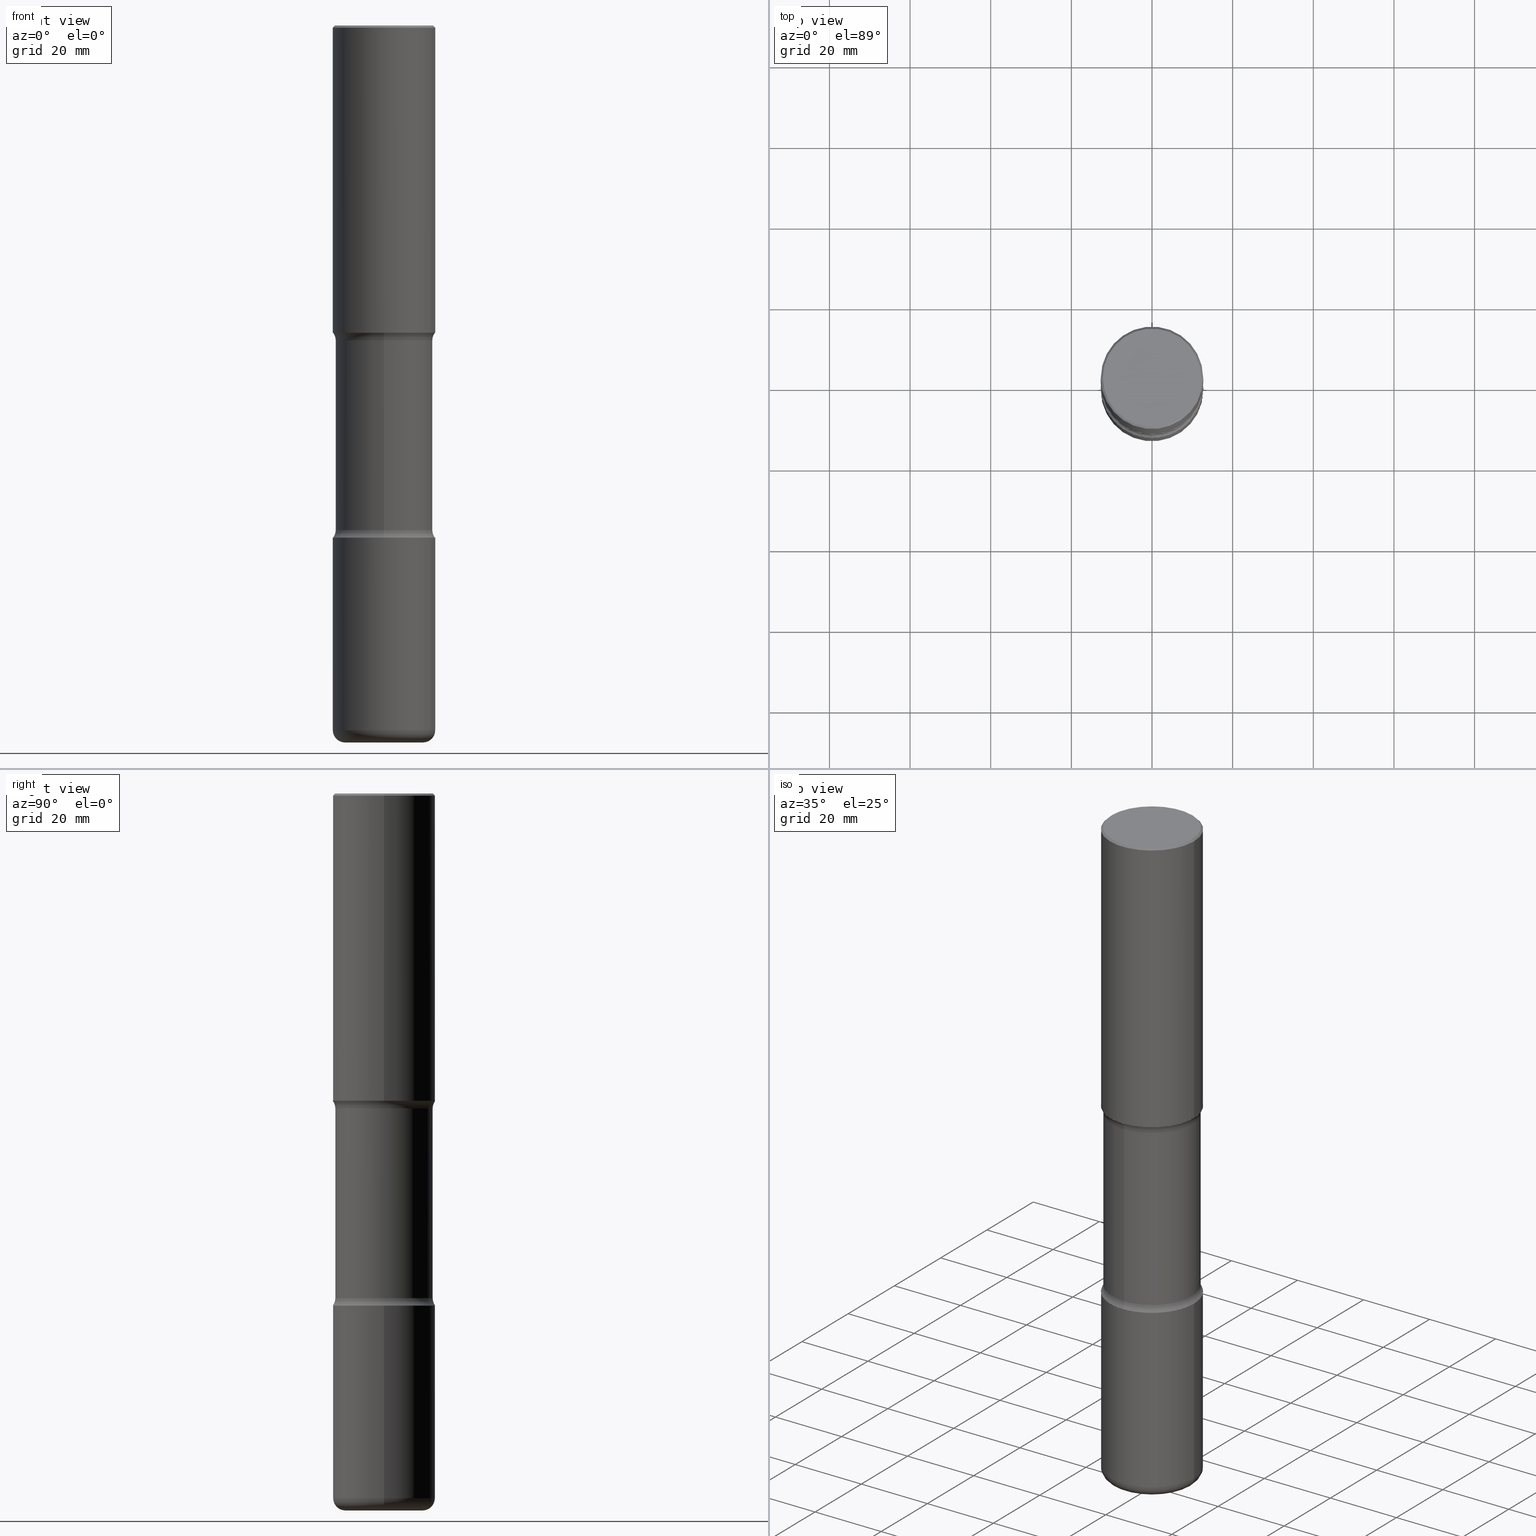
[diagram: canonical four-view strip — front | top / right | iso, engineering-drawing reading convention]
A machine part, canonical four-view strip (front | top / right | iso — engineering-drawing reading convention). The complete STEP part file that produces these views, byte-faithful:
ISO-10303-21;
HEADER;
FILE_DESCRIPTION (( 'STEP AP203' ),
    '1' );
FILE_NAME ('37977.STEP',
    '2024-03-02T02:02:01',
    ( '' ),
    ( '' ),
    'SwSTEP 2.0',
    'SolidWorks 2023',
    '' );
FILE_SCHEMA (( 'CONFIG_CONTROL_DESIGN' ));
ENDSEC;

DATA;
#1 = CARTESIAN_POINT ( 'NONE',  ( 1.204017111178237438E-28, -1.720093407839433761E-14, -4.924999999999998046 ) ) ;
#2 = VERTEX_POINT ( 'NONE', #493 ) ;
#3 = DIRECTION ( 'NONE',  ( 6.982962677686266711E-15, 1.000000000000000000, -4.370956789862819572E-15 ) ) ;
#4 = EDGE_CURVE ( 'NONE', #26, #50, #514, .T. ) ;
#5 = DIRECTION ( 'NONE',  ( 6.982962677686265133E-15, 1.000000000000000000, -3.419634877618474112E-15 ) ) ;
#6 = VERTEX_POINT ( 'NONE', #367 ) ;
#7 = AXIS2_PLACEMENT_3D ( 'NONE', #544, #153, #13 ) ;
#8 = ADVANCED_FACE ( 'NONE', ( #320 ), #121, .T. ) ;
#9 = DIRECTION ( 'NONE',  ( -1.000000000000000000, 6.982962677686266711E-15, 0.000000000000000000 ) ) ;
#10 = VERTEX_POINT ( 'NONE', #276 ) ;
#11 = DIRECTION ( 'NONE',  ( 6.982962677686265133E-15, 1.000000000000000000, -3.450755360418015555E-15 ) ) ;
#12 = ORIENTED_EDGE ( 'NONE', *, *, #429, .F. ) ;
#13 = DIRECTION ( 'NONE',  ( 6.982962677686265133E-15, 1.000000000000000000, -3.278217592397113101E-15 ) ) ;
#14 = FACE_OUTER_BOUND ( 'NONE', #356, .T. ) ;
#15 = APPROVAL_ROLE ( '' ) ;
#16 = AXIS2_PLACEMENT_3D ( 'NONE', #359, #132, #67 ) ;
#17 = DIRECTION ( 'NONE',  ( -2.445468806185136597E-29, 3.491481338843145583E-15, 1.000000000000000000 ) ) ;
#18 = EDGE_CURVE ( 'NONE', #309, #529, #423, .T. ) ;
#19 = FACE_OUTER_BOUND ( 'NONE', #213, .T. ) ;
#20 = APPLICATION_CONTEXT ( 'configuration controlled 3d designs of mechanical parts and assemblies' ) ;
#21 = DIRECTION ( 'NONE',  ( -2.445468806185136597E-29, 3.491481338843145583E-15, 1.000000000000000000 ) ) ;
#22 = AXIS2_PLACEMENT_3D ( 'NONE', #298, #475, #70 ) ;
#23 = EDGE_CURVE ( 'NONE', #6, #129, #75, .T. ) ;
#24 = DIRECTION ( 'NONE',  ( 1.000000000000000000, -6.982962677686266711E-15, 4.876431871984415397E-29 ) ) ;
#25 = FACE_OUTER_BOUND ( 'NONE', #552, .T. ) ;
#26 = VERTEX_POINT ( 'NONE', #177 ) ;
#27 = DIRECTION ( 'NONE',  ( -0.7071067811865471286, 2.468850131082252722E-15, -0.7071067811865479058 ) ) ;
#28 = AXIS2_PLACEMENT_3D ( 'NONE', #492, #90, #3 ) ;
#29 = CIRCLE ( 'NONE', #460, 0.5000000000000002220 ) ;
#30 = ORIENTED_EDGE ( 'NONE', *, *, #525, .T. ) ;
#31 = EDGE_CURVE ( 'NONE', #83, #136, #361, .T. ) ;
#32 = ORIENTED_EDGE ( 'NONE', *, *, #525, .F. ) ;
#33 = PERSON_AND_ORGANIZATION ( #466, #469 ) ;
#34 = ORIENTED_EDGE ( 'NONE', *, *, #249, .F. ) ;
#35 = CC_DESIGN_PERSON_AND_ORGANIZATION_ASSIGNMENT ( #216, #393, ( #123 ) ) ;
#36 = DIRECTION ( 'NONE',  ( 6.982962677686265922E-15, 1.000000000000000000, -2.300503573612011028E-15 ) ) ;
#37 =( NAMED_UNIT ( * ) PLANE_ANGLE_UNIT ( ) SI_UNIT ( $, .RADIAN. ) );
#38 = AXIS2_PLACEMENT_3D ( 'NONE', #435, #392, #72 ) ;
#39 = CIRCLE ( 'NONE', #16, 0.1250000000000002498 ) ;
#40 = ORIENTED_EDGE ( 'NONE', *, *, #64, .F. ) ;
#41 = CC_DESIGN_APPROVAL ( #278, ( #295 ) ) ;
#42 = CYLINDRICAL_SURFACE ( 'NONE', #22, 0.4750000000000000333 ) ;
#43 = EDGE_CURVE ( 'NONE', #2, #353, #155, .T. ) ;
#44 = DIRECTION ( 'NONE',  ( -2.445468806185136597E-29, 3.491481338843145583E-15, 1.000000000000000000 ) ) ;
#45 = ORIENTED_EDGE ( 'NONE', *, *, #66, .T. ) ;
#46 = LINE ( 'NONE', #494, #69 ) ;
#47 = APPROVAL_DATE_TIME ( #491, #454 ) ;
#48 = DATE_AND_TIME ( #452, #158 ) ;
#49 = CARTESIAN_POINT ( 'NONE',  ( 1.222734403092568074E-28, -1.745740669421572673E-14, -4.999999999999999112 ) ) ;
#50 = VERTEX_POINT ( 'NONE', #556 ) ;
#51 = AXIS2_PLACEMENT_3D ( 'NONE', #233, #342, #351 ) ;
#52 = CARTESIAN_POINT ( 'NONE',  ( 1.222734403092568074E-28, -1.745740669421572673E-14, -4.999999999999999112 ) ) ;
#53 = AXIS2_PLACEMENT_3D ( 'NONE', #226, #281, #406 ) ;
#54 = FACE_OUTER_BOUND ( 'NONE', #251, .T. ) ;
#55 = ORIENTED_EDGE ( 'NONE', *, *, #332, .T. ) ;
#56 = ADVANCED_FACE ( 'NONE', ( #117 ), #85, .F. ) ;
#57 = DIRECTION ( 'NONE',  ( 2.438088387897960049E-29, -3.491481338843145188E-15, -1.000000000000000000 ) ) ;
#58 = EDGE_LOOP ( 'NONE', ( #78, #257, #401, #496 ) ) ;
#59 = DIRECTION ( 'NONE',  ( -2.445468806185136877E-29, 3.491481338843145188E-15, 1.000000000000000000 ) ) ;
#60 = CARTESIAN_POINT ( 'NONE',  ( -3.344492773913500625E-15, -0.4750000000000171863, -4.924999999999997158 ) ) ;
#61 = FACE_OUTER_BOUND ( 'NONE', #58, .T. ) ;
#62 = AXIS2_PLACEMENT_3D ( 'NONE', #478, #172, #526 ) ;
#63 = CIRCLE ( 'NONE', #229, 0.1199999999999999539 ) ;
#64 = EDGE_CURVE ( 'NONE', #118, #411, #445, .T. ) ;
#65 = AXIS2_PLACEMENT_3D ( 'NONE', #348, #430, #547 ) ;
#66 = EDGE_CURVE ( 'NONE', #179, #124, #485, .T. ) ;
#67 = DIRECTION ( 'NONE',  ( -6.982962677686264344E-15, -1.000000000000000000, 0.000000000000000000 ) ) ;
#68 = PERSON_AND_ORGANIZATION_ROLE ( 'classification_officer' ) ;
#69 = VECTOR ( 'NONE', #102, 39.37007874015748143 ) ;
#70 = DIRECTION ( 'NONE',  ( 6.982962677686265922E-15, 1.000000000000000000, -2.300503573612011028E-15 ) ) ;
#71 = ORIENTED_EDGE ( 'NONE', *, *, #109, .T. ) ;
#72 = DIRECTION ( 'NONE',  ( 1.000000000000000000, -6.982962677686266711E-15, 0.000000000000000000 ) ) ;
#73 = ORIENTED_EDGE ( 'NONE', *, *, #308, .T. ) ;
#74 = MANIFOLD_SOLID_BREP ( 'Body-Move/Copy2[2]', #173 ) ;
#75 = CIRCLE ( 'NONE', #521, 0.4749999999999999778 ) ;
#76 = AXIS2_PLACEMENT_3D ( 'NONE', #465, #21, #163 ) ;
#77 = ORIENTED_EDGE ( 'NONE', *, *, #82, .F. ) ;
#78 = ORIENTED_EDGE ( 'NONE', *, *, #170, .F. ) ;
#79 = EDGE_CURVE ( 'NONE', #391, #176, #347, .T. ) ;
#80 = COORDINATED_UNIVERSAL_TIME_OFFSET ( 5, 0, .BEHIND. ) ;
#81 = ORIENTED_EDGE ( 'NONE', *, *, #355, .T. ) ;
#82 = EDGE_CURVE ( 'NONE', #179, #83, #299, .T. ) ;
#83 = VERTEX_POINT ( 'NONE', #210 ) ;
#84 = DIRECTION ( 'NONE',  ( -1.000000000000000000, 7.105427357600993970E-15, 0.000000000000000000 ) ) ;
#85 = PLANE ( 'NONE',  #62 ) ;
#86 = ORIENTED_EDGE ( 'NONE', *, *, #115, .F. ) ;
#87 = AXIS2_PLACEMENT_3D ( 'NONE', #110, #486, #24 ) ;
#88 = ORIENTED_EDGE ( 'NONE', *, *, #441, .T. ) ;
#89 = DIRECTION ( 'NONE',  ( 2.495638921910708014E-29, -3.419634877618474112E-15, -1.000000000000000000 ) ) ;
#90 = DIRECTION ( 'NONE',  ( 2.495638921910708014E-29, -3.419634877618474112E-15, -1.000000000000000000 ) ) ;
#91 = ORIENTED_EDGE ( 'NONE', *, *, #548, .T. ) ;
#92 = ORIENTED_EDGE ( 'NONE', *, *, #234, .T. ) ;
#93 = MANIFOLD_SOLID_BREP ( 'Body-Move/Copy2[1]', #195 ) ;
#94 = CARTESIAN_POINT ( 'NONE',  ( 0.4999999999999999445, -3.500078625662628685E-15, -0.02000000000000013572 ) ) ;
#95 = MANIFOLD_SOLID_BREP ( 'Body-Move/Copy2[4]', #228 ) ;
#96 = ORIENTED_EDGE ( 'NONE', *, *, #203, .T. ) ;
#97 = ADVANCED_FACE ( 'NONE', ( #389 ), #319, .T. ) ;
#98 = AXIS2_PLACEMENT_3D ( 'NONE', #488, #451, #498 ) ;
#99 = AXIS2_PLACEMENT_3D ( 'NONE', #318, #371, #269 ) ;
#100 = CARTESIAN_POINT ( 'NONE',  ( 3.491481338843257601E-15, 0.4999999999999828471, -5.000000000000000888 ) ) ;
#101 = LINE ( 'NONE', #279, #499 ) ;
#102 = DIRECTION ( 'NONE',  ( 2.495638921910708014E-29, -3.419634877618474112E-15, -1.000000000000000000 ) ) ;
#103 = DIRECTION ( 'NONE',  ( 6.982962677686265133E-15, 1.000000000000000000, -3.419634877618474112E-15 ) ) ;
#104 = AXIS2_PLACEMENT_3D ( 'NONE', #459, #227, #409 ) ;
#105 = PERSON_AND_ORGANIZATION_ROLE ( 'creator' ) ;
#106 = CIRCLE ( 'NONE', #7, 0.5000000000000004441 ) ;
#107 = APPROVAL_PERSON_ORGANIZATION ( #483, #454, #262 ) ;
#108 = DIRECTION ( 'NONE',  ( 1.000000000000000000, -6.982962677686263555E-15, 0.000000000000000000 ) ) ;
#109 = EDGE_CURVE ( 'NONE', #124, #136, #191, .T. ) ;
#110 = CARTESIAN_POINT ( 'NONE',  ( -4.175405657340879278E-46, 5.961372681521788801E-32, 1.707404996040164512E-17 ) ) ;
#111 = TOROIDAL_SURFACE ( 'NONE', #339, 0.5999999999999999778, 0.1250000000000001110 ) ;
#112 = CARTESIAN_POINT ( 'NONE',  ( -0.3800000000000004485, -2.132132921535246210E-14, -6.880000000000000782 ) ) ;
#113 = DIRECTION ( 'NONE',  ( 1.000000000000000000, -6.860497997771530774E-15, 4.841678745011831520E-29 ) ) ;
#114 = ORIENTED_EDGE ( 'NONE', *, *, #390, .T. ) ;
#115 = EDGE_CURVE ( 'NONE', #369, #2, #396, .T. ) ;
#116 = PERSON_AND_ORGANIZATION_ROLE ( 'design_owner' ) ;
#117 = FACE_OUTER_BOUND ( 'NONE', #553, .T. ) ;
#118 = VERTEX_POINT ( 'NONE', #100 ) ;
#119 = CC_DESIGN_DATE_AND_TIME_ASSIGNMENT ( #175, #352, ( #295 ) ) ;
#120 = DIRECTION ( 'NONE',  ( 6.860497997771531562E-15, 1.000000000000000000, 0.000000000000000000 ) ) ;
#121 = TOROIDAL_SURFACE ( 'NONE', #51, 0.3800000000000004485, 0.1199999999999999123 ) ;
#122 = CIRCLE ( 'NONE', #523, 0.4999999999999999445 ) ;
#123 = PRODUCT_DEFINITION_FORMATION_WITH_SPECIFIED_SOURCE ( 'ANY', '', #495, .NOT_KNOWN. ) ;
#124 = VERTEX_POINT ( 'NONE', #453 ) ;
#125 = DIRECTION ( 'NONE',  ( -2.445468806185136597E-29, 3.491481338843145583E-15, 1.000000000000000000 ) ) ;
#126 = EDGE_LOOP ( 'NONE', ( #302, #171, #182, #341 ) ) ;
#127 = DIRECTION ( 'NONE',  ( 2.495638921910708014E-29, -3.419634877618474112E-15, -1.000000000000000000 ) ) ;
#128 = DIRECTION ( 'NONE',  ( 1.000000000000000000, -6.982962677686264344E-15, 0.000000000000000000 ) ) ;
#129 = VERTEX_POINT ( 'NONE', #60 ) ;
#130 = DIRECTION ( 'NONE',  ( -2.445468806185136597E-29, 3.491481338843145583E-15, 1.000000000000000000 ) ) ;
#131 = DIRECTION ( 'NONE',  ( 2.495638921910708014E-29, -3.419634877618474112E-15, -1.000000000000000000 ) ) ;
#132 = DIRECTION ( 'NONE',  ( -1.000000000000000000, 6.982962677686265922E-15, -4.883557194083112340E-29 ) ) ;
#133 = AXIS2_PLACEMENT_3D ( 'NONE', #52, #538, #237 ) ;
#134 = CARTESIAN_POINT ( 'NONE',  ( 0.000000000000000000, 0.000000000000000000, 0.000000000000000000 ) ) ;
#135 = FACE_OUTER_BOUND ( 'NONE', #535, .T. ) ;
#136 = VERTEX_POINT ( 'NONE', #277 ) ;
#137 = APPROVAL_STATUS ( 'not_yet_approved' ) ;
#138 = ADVANCED_FACE ( 'NONE', ( #54 ), #385, .T. ) ;
#139 = DIRECTION ( 'NONE',  ( -2.445468806185136597E-29, 3.491481338843145583E-15, 1.000000000000000000 ) ) ;
#140 = ORIENTED_EDGE ( 'NONE', *, *, #340, .T. ) ;
#141 = LINE ( 'NONE', #327, #410 ) ;
#142 = APPLICATION_CONTEXT ( 'configuration controlled 3d designs of mechanical parts and assemblies' ) ;
#143 = DIRECTION ( 'NONE',  ( -6.982962677686264344E-15, -1.000000000000000000, 0.000000000000000000 ) ) ;
#144 = CC_DESIGN_DATE_AND_TIME_ASSIGNMENT ( #503, #287, ( #545 ) ) ;
#145 = AXIS2_PLACEMENT_3D ( 'NONE', #232, #270, #328 ) ;
#146 = CIRCLE ( 'NONE', #487, 0.3800000000000004485 ) ;
#147 = CARTESIAN_POINT ( 'NONE',  ( -4.116298798662799188E-15, -0.6000000000000174083, -4.924999999999996270 ) ) ;
#148 = DIRECTION ( 'NONE',  ( -2.445468806185136597E-29, 3.491481338843145583E-15, 1.000000000000000000 ) ) ;
#149 = LINE ( 'NONE', #368, #427 ) ;
#150 = ORIENTED_EDGE ( 'NONE', *, *, #193, .T. ) ;
#151 = DIRECTION ( 'NONE',  ( -2.445468806185136597E-29, 3.491481338843145583E-15, 1.000000000000000000 ) ) ;
#152 = ORIENTED_EDGE ( 'NONE', *, *, #500, .T. ) ;
#153 = DIRECTION ( 'NONE',  ( 2.495638921910708014E-29, -3.419634877618474112E-15, -1.000000000000000000 ) ) ;
#154 = DIRECTION ( 'NONE',  ( 2.495638921910708014E-29, -3.419634877618474112E-15, -1.000000000000000000 ) ) ;
#155 = CIRCLE ( 'NONE', #458, 0.1250000000000001110 ) ;
#156 = APPROVAL_STATUS ( 'not_yet_approved' ) ;
#157 = CIRCLE ( 'NONE', #202, 0.1250000000000001110 ) ;
#158 = LOCAL_TIME ( 21, 2, 1.000000000000000000, #244 ) ;
#159 = CARTESIAN_POINT ( 'NONE',  ( 1.711828164329595618E-28, -2.444036937190202184E-14, -7.000000000000000888 ) ) ;
#160 =( LENGTH_UNIT ( ) NAMED_UNIT ( * ) SI_UNIT ( $, .METRE. ) );
#161 = ADVANCED_FACE ( 'NONE', ( #135 ), #419, .F. ) ;
#162 = APPLICATION_PROTOCOL_DEFINITION ( 'international standard', 'config_control_design', 1994, #20 ) ;
#163 = DIRECTION ( 'NONE',  ( 1.000000000000000000, -6.982962677686267499E-15, 4.876176775795935793E-29 ) ) ;
#164 = AXIS2_PLACEMENT_3D ( 'NONE', #476, #44, #128 ) ;
#165 = ADVANCED_FACE ( 'NONE', ( #14 ), #246, .T. ) ;
#166 = ORIENTED_EDGE ( 'NONE', *, *, #479, .F. ) ;
#167 = DIRECTION ( 'NONE',  ( 6.982962677686265133E-15, 1.000000000000000000, -2.300503573612011422E-15 ) ) ;
#168 = EDGE_LOOP ( 'NONE', ( #268, #325, #489, #259 ) ) ;
#169 = DIRECTION ( 'NONE',  ( 2.495638921910708014E-29, -3.419634877618474112E-15, -1.000000000000000000 ) ) ;
#170 = EDGE_CURVE ( 'NONE', #411, #118, #530, .T. ) ;
#171 = ORIENTED_EDGE ( 'NONE', *, *, #66, .F. ) ;
#172 = DIRECTION ( 'NONE',  ( -2.438088387897960049E-29, 3.491481338843145188E-15, 1.000000000000000000 ) ) ;
#173 = CLOSED_SHELL ( 'NONE', ( #505, #165, #282, #187, #56, #292 ) ) ;
#174 = CIRCLE ( 'NONE', #374, 0.1250000000000002498 ) ;
#175 = DATE_AND_TIME ( #558, #286 ) ;
#176 = VERTEX_POINT ( 'NONE', #274 ) ;
#177 = CARTESIAN_POINT ( 'NONE',  ( 0.5000000000000002220, -2.094888803305886009E-14, -4.999999999999999112 ) ) ;
#178 = CALENDAR_DATE ( 2024, 1, 3 ) ;
#179 = VERTEX_POINT ( 'NONE', #415 ) ;
#180 = CARTESIAN_POINT ( 'NONE',  ( 3.316907271901051235E-15, 0.4749999999999892641, -3.075000000000001510 ) ) ;
#181 = DIRECTION ( 'NONE',  ( -1.000000000000000000, 6.982962677686265922E-15, -4.876176775795935793E-29 ) ) ;
#182 = ORIENTED_EDGE ( 'NONE', *, *, #82, .T. ) ;
#183 = CARTESIAN_POINT ( 'NONE',  ( -3.258736548941304889E-15, -0.4750000000000243472, -6.999999999999997335 ) ) ;
#184 = DIRECTION ( 'NONE',  ( 2.438088387897960049E-29, -3.491481338843145188E-15, -1.000000000000000000 ) ) ;
#185 = ORIENTED_EDGE ( 'NONE', *, *, #207, .F. ) ;
#186 = AXIS2_PLACEMENT_3D ( 'NONE', #360, #258, #36 ) ;
#187 = ADVANCED_FACE ( 'NONE', ( #194 ), #373, .F. ) ;
#188 = CC_DESIGN_APPROVAL ( #454, ( #545 ) ) ;
#189 = FACE_OUTER_BOUND ( 'NONE', #444, .T. ) ;
#190 = DIRECTION ( 'NONE',  ( 1.000000000000000000, -6.982962677686263555E-15, 0.000000000000000000 ) ) ;
#191 = LINE ( 'NONE', #94, #557 ) ;
#192 = PLANE ( 'NONE',  #133 ) ;
#193 = EDGE_CURVE ( 'NONE', #309, #50, #149, .T. ) ;
#194 = FACE_OUTER_BOUND ( 'NONE', #271, .T. ) ;
#195 = CLOSED_SHELL ( 'NONE', ( #382, #8, #97, #138, #380, #161 ) ) ;
#196 = TOROIDAL_SURFACE ( 'NONE', #99, 0.5999999999999999778, 0.1250000000000001110 ) ;
#197 = PLANE ( 'NONE',  #326 ) ;
#198 = DIRECTION ( 'NONE',  ( 1.000000000000000000, -6.982962677686267499E-15, 4.876176775795935793E-29 ) ) ;
#199 = DIRECTION ( 'NONE',  ( 2.495638921910708014E-29, -3.419634877618474112E-15, -1.000000000000000000 ) ) ;
#200 = CARTESIAN_POINT ( 'NONE',  ( 0.5000000000000004441, -2.751287295008398172E-14, -6.880000000000000782 ) ) ;
#201 = AXIS2_PLACEMENT_3D ( 'NONE', #49, #184, #316 ) ;
#202 = AXIS2_PLACEMENT_3D ( 'NONE', #267, #539, #143 ) ;
#203 = EDGE_CURVE ( 'NONE', #529, #309, #324, .T. ) ;
#204 = DIRECTION ( 'NONE',  ( 6.982962677686265133E-15, 1.000000000000000000, -2.300503573612011422E-15 ) ) ;
#205 = APPROVAL_DATE_TIME ( #48, #278 ) ;
#206 = DIRECTION ( 'NONE',  ( 1.000000000000000000, -6.982962677686266711E-15, 4.876176775795935232E-29 ) ) ;
#207 = EDGE_CURVE ( 'NONE', #369, #6, #46, .T. ) ;
#208 = ORIENTED_EDGE ( 'NONE', *, *, #79, .F. ) ;
#209 = AXIS2_PLACEMENT_3D ( 'NONE', #528, #169, #554 ) ;
#210 = CARTESIAN_POINT ( 'NONE',  ( -0.4999999999999999445, 3.421651712066269663E-15, -0.02000000000000013572 ) ) ;
#211 = ORIENTED_EDGE ( 'NONE', *, *, #304, .F. ) ;
#212 = UNCERTAINTY_MEASURE_WITH_UNIT (LENGTH_MEASURE( 1.000000000000000082E-05 ), #297, 'distance_accuracy_value', 'NONE');
#213 = EDGE_LOOP ( 'NONE', ( #34, #265, #404, #449 ) ) ;
#214 = CARTESIAN_POINT ( 'NONE',  ( -4.175405657340879278E-46, 5.961372681521788801E-32, 1.707404996040164512E-17 ) ) ;
#215 = DIRECTION ( 'NONE',  ( 2.495638921910708014E-29, -3.419634877618474112E-15, -1.000000000000000000 ) ) ;
#216 = PERSON_AND_ORGANIZATION ( #466, #469 ) ;
#217 = EDGE_LOOP ( 'NONE', ( #32, #416 ) ) ;
#218 = FACE_OUTER_BOUND ( 'NONE', #365, .T. ) ;
#219 = AXIS2_PLACEMENT_3D ( 'NONE', #467, #504, #103 ) ;
#220 = ORIENTED_EDGE ( 'NONE', *, *, #31, .F. ) ;
#221 = DIRECTION ( 'NONE',  ( 7.105427357601001859E-15, 1.000000000000000000, -3.491481338843145583E-15 ) ) ;
#222 = COORDINATED_UNIVERSAL_TIME_OFFSET ( 5, 0, .BEHIND. ) ;
#223 = CARTESIAN_POINT ( 'NONE',  ( -4.116298798662844153E-15, -0.6000000000000108580, -3.074999999999998401 ) ) ;
#224 = PERSON_AND_ORGANIZATION_ROLE ( 'creator' ) ;
#225 = ORIENTED_EDGE ( 'NONE', *, *, #115, .T. ) ;
#226 = CARTESIAN_POINT ( 'NONE',  ( 7.423239106247569958E-29, -1.087460955480016368E-14, -3.074999999999999734 ) ) ;
#227 = DIRECTION ( 'NONE',  ( 2.438088387897960049E-29, -3.491481338843145188E-15, -1.000000000000000000 ) ) ;
#228 = CLOSED_SHELL ( 'NONE', ( #370, #518, #546, #399, #471, #414, #255, #344 ) ) ;
#229 = AXIS2_PLACEMENT_3D ( 'NONE', #266, #261, #432 ) ;
#230 = CC_DESIGN_PERSON_AND_ORGANIZATION_ASSIGNMENT ( #280, #105, ( #545 ) ) ;
#231 = APPROVAL_PERSON_ORGANIZATION ( #238, #350, #264 ) ;
#232 = CARTESIAN_POINT ( 'NONE',  ( 1.682482538655374212E-28, -2.402139161124084521E-14, -6.880000000000000782 ) ) ;
#233 = CARTESIAN_POINT ( 'NONE',  ( 1.682482538655374212E-28, -2.402139161124084521E-14, -6.880000000000000782 ) ) ;
#234 = EDGE_CURVE ( 'NONE', #369, #305, #157, .T. ) ;
#235 = CARTESIAN_POINT ( 'NONE',  ( 1.682482538655374212E-28, -2.402139161124084521E-14, -6.880000000000000782 ) ) ;
#236 = ORIENTED_EDGE ( 'NONE', *, *, #207, .T. ) ;
#237 = DIRECTION ( 'NONE',  ( -6.982962677686265922E-15, -1.000000000000000000, 3.419634877618474112E-15 ) ) ;
#238 = PERSON_AND_ORGANIZATION ( #466, #469 ) ;
#239 = DIRECTION ( 'NONE',  ( 1.000000000000000000, -6.982962677686265133E-15, 4.883557194083111780E-29 ) ) ;
#240 = AXIS2_PLACEMENT_3D ( 'NONE', #214, #125, #307 ) ;
#241 = FACE_OUTER_BOUND ( 'NONE', #555, .T. ) ;
#242 = APPROVAL_PERSON_ORGANIZATION ( #405, #278, #15 ) ;
#243 = FACE_OUTER_BOUND ( 'NONE', #168, .T. ) ;
#244 = COORDINATED_UNIVERSAL_TIME_OFFSET ( 5, 0, .BEHIND. ) ;
#245 = LINE ( 'NONE', #293, #559 ) ;
#246 = CONICAL_SURFACE ( 'NONE', #98, 0.4999999999999999445, 0.7853981633974477239 ) ;
#247 = VECTOR ( 'NONE', #127, 39.37007874015748143 ) ;
#248 = LOCAL_TIME ( 21, 2, 1.000000000000000000, #463 ) ;
#249 = EDGE_CURVE ( 'NONE', #2, #369, #551, .T. ) ;
#250 = CARTESIAN_POINT ( 'NONE',  ( 1.204017111178237438E-28, -1.720093407839433761E-14, -4.924999999999998046 ) ) ;
#251 = EDGE_LOOP ( 'NONE', ( #413, #400, #81, #534 ) ) ;
#252 = CARTESIAN_POINT ( 'NONE',  ( -0.4999999999999999445, 3.421651712066269663E-15, -0.02000000000000013572 ) ) ;
#253 = ORIENTED_EDGE ( 'NONE', *, *, #64, .T. ) ;
#254 = ORIENTED_EDGE ( 'NONE', *, *, #23, .T. ) ;
#255 = ADVANCED_FACE ( 'NONE', ( #358 ), #294, .F. ) ;
#256 = DATE_AND_TIME ( #178, #364 ) ;
#257 = ORIENTED_EDGE ( 'NONE', *, *, #429, .T. ) ;
#258 = DIRECTION ( 'NONE',  ( 2.495638921910708014E-29, -3.419634877618474112E-15, -1.000000000000000000 ) ) ;
#259 = ORIENTED_EDGE ( 'NONE', *, *, #441, .F. ) ;
#260 = ORIENTED_EDGE ( 'NONE', *, *, #304, .T. ) ;
#261 = DIRECTION ( 'NONE',  ( -6.982962677686266711E-15, -1.000000000000000000, 3.491481338843145583E-15 ) ) ;
#262 = APPROVAL_ROLE ( '' ) ;
#263 = AXIS2_PLACEMENT_3D ( 'NONE', #134, #431, #206 ) ;
#264 = APPROVAL_ROLE ( '' ) ;
#265 = ORIENTED_EDGE ( 'NONE', *, *, #43, .T. ) ;
#266 = CARTESIAN_POINT ( 'NONE',  ( 0.3800000000000004485, -2.667491742876162845E-14, -6.880000000000000782 ) ) ;
#267 = CARTESIAN_POINT ( 'NONE',  ( 4.189777606611833390E-15, 0.5999999999999890976, -3.075000000000002398 ) ) ;
#268 = ORIENTED_EDGE ( 'NONE', *, *, #79, .T. ) ;
#269 = DIRECTION ( 'NONE',  ( 6.982962677686265133E-15, 1.000000000000000000, -3.419634877618474112E-15 ) ) ;
#270 = DIRECTION ( 'NONE',  ( -2.445468806185136597E-29, 3.491481338843145583E-15, 1.000000000000000000 ) ) ;
#271 = EDGE_LOOP ( 'NONE', ( #45, #73 ) ) ;
#272 = ORIENTED_EDGE ( 'NONE', *, *, #193, .F. ) ;
#273 = DIRECTION ( 'NONE',  ( -2.445468806185136597E-29, 3.491481338843145583E-15, 1.000000000000000000 ) ) ;
#274 = CARTESIAN_POINT ( 'NONE',  ( -0.5000000000000002220, -1.719423142852643572E-15, -2.999999999999999112 ) ) ;
#275 = ORIENTED_EDGE ( 'NONE', *, *, #43, .F. ) ;
#276 = CARTESIAN_POINT ( 'NONE',  ( 0.3800000000000004485, -2.709389518942280508E-14, -7.000000000000000888 ) ) ;
#277 = CARTESIAN_POINT ( 'NONE',  ( 0.4999999999999999445, -3.500078625662628685E-15, -0.02000000000000013572 ) ) ;
#278 = APPROVAL ( #137, 'UNSPECIFIED' ) ;
#279 = CARTESIAN_POINT ( 'NONE',  ( 0.5000000000000001110, -3.491481338843134539E-15, 2.438088387897968457E-29 ) ) ;
#280 = PERSON_AND_ORGANIZATION ( #466, #469 ) ;
#281 = DIRECTION ( 'NONE',  ( 2.495638921910708014E-29, -3.419634877618474112E-15, -1.000000000000000000 ) ) ;
#282 = ADVANCED_FACE ( 'NONE', ( #362 ), #381, .T. ) ;
#283 = DIRECTION ( 'NONE',  ( -2.445468806185136597E-29, 3.491481338843145583E-15, 1.000000000000000000 ) ) ;
#284 = VECTOR ( 'NONE', #27, 39.37007874015748143 ) ;
#285 = CIRCLE ( 'NONE', #87, 0.4799999999999998157 ) ;
#286 = LOCAL_TIME ( 21, 2, 1.000000000000000000, #472 ) ;
#287 = DATE_TIME_ROLE ( 'creation_date' ) ;
#288 = CC_DESIGN_PERSON_AND_ORGANIZATION_ASSIGNMENT ( #388, #116, ( #495 ) ) ;
#289 = DIRECTION ( 'NONE',  ( 1.000000000000000000, -6.982962677686263555E-15, 0.000000000000000000 ) ) ;
#290 = CARTESIAN_POINT ( 'NONE',  ( 7.424434616114947917E-29, -1.087289751662588659E-14, -3.075000000000000178 ) ) ;
#291 = DIRECTION ( 'NONE',  ( 6.982962677686265133E-15, 1.000000000000000000, -3.278217592397113101E-15 ) ) ;
#292 = ADVANCED_FACE ( 'NONE', ( #189 ), #366, .T. ) ;
#293 = CARTESIAN_POINT ( 'NONE',  ( -0.5000000000000001110, 3.552713678800501718E-15, -2.459467545127453732E-29 ) ) ;
#294 = TOROIDAL_SURFACE ( 'NONE', #349, 0.6000000000000001998, 0.1250000000000002498 ) ;
#295 = SECURITY_CLASSIFICATION ( '', '', #337 ) ;
#296 = FACE_OUTER_BOUND ( 'NONE', #442, .T. ) ;
#297 =( CONVERSION_BASED_UNIT ( 'INCH', #520 ) LENGTH_UNIT ( ) NAMED_UNIT ( #322 ) );
#298 = CARTESIAN_POINT ( 'NONE',  ( 1.721862187474709565E-28, -2.429667644945267101E-14, -6.999999999999998224 ) ) ;
#299 = LINE ( 'NONE', #252, #284 ) ;
#300 = ORIENTED_EDGE ( 'NONE', *, *, #4, .T. ) ;
#301 = APPLICATION_PROTOCOL_DEFINITION ( 'international standard', 'config_control_design', 1994, #142 ) ;
#302 = ORIENTED_EDGE ( 'NONE', *, *, #109, .F. ) ;
#303 = AXIS2_PLACEMENT_3D ( 'NONE', #536, #533, #9 ) ;
#304 = EDGE_CURVE ( 'NONE', #50, #26, #29, .T. ) ;
#305 = VERTEX_POINT ( 'NONE', #354 ) ;
#306 = ORIENTED_EDGE ( 'NONE', *, *, #203, .F. ) ;
#307 = DIRECTION ( 'NONE',  ( 1.000000000000000000, -6.982962677686266711E-15, 4.876431871984415397E-29 ) ) ;
#308 = EDGE_CURVE ( 'NONE', #124, #179, #285, .T. ) ;
#309 = VERTEX_POINT ( 'NONE', #490 ) ;
#310 = CARTESIAN_POINT ( 'NONE',  ( -3.430248998885697150E-15, -0.5000000000000112133, -2.999999999999997335 ) ) ;
#311 = CARTESIAN_POINT ( 'NONE',  ( -1.099429689693299197E-28, -6.469918191011217794E-14, -7.000000000000000000 ) ) ;
#312 = CIRCLE ( 'NONE', #540, 0.3800000000000004485 ) ;
#313 = ORIENTED_EDGE ( 'NONE', *, *, #510, .F. ) ;
#314 = CC_DESIGN_PERSON_AND_ORGANIZATION_ASSIGNMENT ( #33, #224, ( #123 ) ) ;
#315 = APPROVAL_STATUS ( 'not_yet_approved' ) ;
#316 = DIRECTION ( 'NONE',  ( -1.000000000000000000, 6.982962677686265922E-15, -4.876176775795935793E-29 ) ) ;
#317 = ORIENTED_EDGE ( 'NONE', *, *, #345, .F. ) ;
#318 = CARTESIAN_POINT ( 'NONE',  ( 7.424434616114947917E-29, -1.087289751662588659E-14, -3.075000000000000178 ) ) ;
#319 = PLANE ( 'NONE',  #550 ) ;
#320 = FACE_OUTER_BOUND ( 'NONE', #386, .T. ) ;
#321 = PRODUCT_DEFINITION_SHAPE ( 'NONE', 'NONE',  #545 ) ;
#322 = DIMENSIONAL_EXPONENTS ( 1.000000000000000000, 0.000000000000000000, 0.000000000000000000, 0.000000000000000000, 0.000000000000000000, 0.000000000000000000, 0.000000000000000000 ) ;
#323 = CARTESIAN_POINT ( 'NONE',  ( 1.204393387046179415E-28, -1.719554559380248700E-14, -4.924999999999998046 ) ) ;
#324 = CIRCLE ( 'NONE', #145, 0.5000000000000004441 ) ;
#325 = ORIENTED_EDGE ( 'NONE', *, *, #479, .T. ) ;
#326 = AXIS2_PLACEMENT_3D ( 'NONE', #375, #509, #513 ) ;
#327 = CARTESIAN_POINT ( 'NONE',  ( 0.5000000000000004441, -3.491481338843136511E-15, 2.438088387897969858E-29 ) ) ;
#328 = DIRECTION ( 'NONE',  ( 1.000000000000000000, -6.982962677686264344E-15, 0.000000000000000000 ) ) ;
#329 = CALENDAR_DATE ( 2024, 1, 3 ) ;
#330 = CARTESIAN_POINT ( 'NONE',  ( 1.711828164329595618E-28, -2.444036937190202184E-14, -7.000000000000000888 ) ) ;
#331 = CARTESIAN_POINT ( 'NONE',  ( 0.5000000000000002220, -1.396592535537256813E-14, -2.999999999999999112 ) ) ;
#332 = EDGE_CURVE ( 'NONE', #2, #129, #446, .T. ) ;
#333 = AXIS2_PLACEMENT_3D ( 'NONE', #420, #456, #190 ) ;
#334 = CIRCLE ( 'NONE', #437, 0.5000000000000004441 ) ;
#335 = DIRECTION ( 'NONE',  ( 6.982962677686265133E-15, 1.000000000000000000, -3.419634877618474112E-15 ) ) ;
#336 = CC_DESIGN_SECURITY_CLASSIFICATION ( #295, ( #123 ) ) ;
#337 = SECURITY_CLASSIFICATION_LEVEL ( 'unclassified' ) ;
#338 = EDGE_CURVE ( 'NONE', #136, #83, #122, .T. ) ;
#339 = AXIS2_PLACEMENT_3D ( 'NONE', #290, #154, #335 ) ;
#340 = EDGE_CURVE ( 'NONE', #537, #309, #428, .T. ) ;
#341 = ORIENTED_EDGE ( 'NONE', *, *, #31, .T. ) ;
#342 = DIRECTION ( 'NONE',  ( -2.445468806185136597E-29, 3.491481338843145583E-15, 1.000000000000000000 ) ) ;
#343 = ORIENTED_EDGE ( 'NONE', *, *, #308, .F. ) ;
#344 = ADVANCED_FACE ( 'NONE', ( #296 ), #42, .T. ) ;
#345 = EDGE_CURVE ( 'NONE', #129, #6, #363, .T. ) ;
#346 = ORIENTED_EDGE ( 'NONE', *, *, #18, .T. ) ;
#347 = CIRCLE ( 'NONE', #473, 0.5000000000000002220 ) ;
#348 = CARTESIAN_POINT ( 'NONE',  ( 0.000000000000000000, 0.000000000000000000, 0.000000000000000000 ) ) ;
#349 = AXIS2_PLACEMENT_3D ( 'NONE', #323, #131, #5 ) ;
#350 = APPROVAL ( #156, 'UNSPECIFIED' ) ;
#351 = DIRECTION ( 'NONE',  ( 1.000000000000000000, -6.982962677686265133E-15, 4.883557194083111780E-29 ) ) ;
#352 = DATE_TIME_ROLE ( 'classification_date' ) ;
#353 = VERTEX_POINT ( 'NONE', #310 ) ;
#354 = CARTESIAN_POINT ( 'NONE',  ( 3.491481338843209480E-15, 0.4999999999999900080, -3.000000000000000888 ) ) ;
#355 = EDGE_CURVE ( 'NONE', #10, #529, #63, .T. ) ;
#356 = EDGE_LOOP ( 'NONE', ( #343, #71, #522, #77 ) ) ;
#357 = EDGE_LOOP ( 'NONE', ( #12, #40, #152, #254 ) ) ;
#358 = FACE_OUTER_BOUND ( 'NONE', #357, .T. ) ;
#359 = CARTESIAN_POINT ( 'NONE',  ( 4.189777606611881511E-15, 0.5999999999999829914, -4.925000000000000711 ) ) ;
#360 = CARTESIAN_POINT ( 'NONE',  ( 1.721862187474709565E-28, -2.429667644945267101E-14, -6.999999999999998224 ) ) ;
#361 = CIRCLE ( 'NONE', #38, 0.4999999999999999445 ) ;
#362 = FACE_OUTER_BOUND ( 'NONE', #126, .T. ) ;
#363 = CIRCLE ( 'NONE', #424, 0.4749999999999999778 ) ;
#364 = LOCAL_TIME ( 21, 2, 1.000000000000000000, #80 ) ;
#365 = EDGE_LOOP ( 'NONE', ( #96, #150, #438, #455 ) ) ;
#366 = CYLINDRICAL_SURFACE ( 'NONE', #474, 0.5000000000000001110 ) ;
#367 = CARTESIAN_POINT ( 'NONE',  ( 3.316907271901096594E-15, 0.4749999999999827693, -4.924999999999999822 ) ) ;
#368 = CARTESIAN_POINT ( 'NONE',  ( -0.5000000000000004441, 3.552713678800504085E-15, -2.459467545127455133E-29 ) ) ;
#369 = VERTEX_POINT ( 'NONE', #180 ) ;
#370 = ADVANCED_FACE ( 'NONE', ( #25 ), #450, .T. ) ;
#371 = DIRECTION ( 'NONE',  ( 2.495638921910708014E-29, -3.419634877618474112E-15, -1.000000000000000000 ) ) ;
#372 = SHAPE_DEFINITION_REPRESENTATION ( #321, #439 ) ;
#373 = PLANE ( 'NONE',  #104 ) ;
#374 = AXIS2_PLACEMENT_3D ( 'NONE', #147, #425, #506 ) ;
#375 = CARTESIAN_POINT ( 'NONE',  ( 7.336406418555407548E-29, -1.047444401652943320E-14, -2.999999999999999112 ) ) ;
#376 = DIRECTION ( 'NONE',  ( 1.000000000000000000, -6.982962677686263555E-15, 0.000000000000000000 ) ) ;
#377 = CARTESIAN_POINT ( 'NONE',  ( 0.000000000000000000, 0.000000000000000000, 0.000000000000000000 ) ) ;
#378 = CARTESIAN_POINT ( 'NONE',  ( -0.3800000000000004485, -2.110449245422699151E-14, -7.000000000000000888 ) ) ;
#379 = CC_DESIGN_PERSON_AND_ORGANIZATION_ASSIGNMENT ( #512, #68, ( #295 ) ) ;
#380 = ADVANCED_FACE ( 'NONE', ( #531 ), #443, .T. ) ;
#381 = CONICAL_SURFACE ( 'NONE', #303, 0.4999999999999999445, 0.7853981633974477239 ) ;
#382 = ADVANCED_FACE ( 'NONE', ( #218 ), #384, .T. ) ;
#383 = CARTESIAN_POINT ( 'NONE',  ( 7.236066187104263592E-29, -1.061813693897877772E-14, -2.999999999999999112 ) ) ;
#384 = CYLINDRICAL_SURFACE ( 'NONE', #387, 0.5000000000000004441 ) ;
#385 = TOROIDAL_SURFACE ( 'NONE', #407, 0.3800000000000004485, 0.1199999999999999123 ) ;
#386 = EDGE_LOOP ( 'NONE', ( #30, #140, #306, #527 ) ) ;
#387 = AXIS2_PLACEMENT_3D ( 'NONE', #377, #273, #418 ) ;
#388 = PERSON_AND_ORGANIZATION ( #466, #469 ) ;
#389 = FACE_OUTER_BOUND ( 'NONE', #217, .T. ) ;
#390 = EDGE_CURVE ( 'NONE', #305, #353, #106, .T. ) ;
#391 = VERTEX_POINT ( 'NONE', #331 ) ;
#392 = DIRECTION ( 'NONE',  ( -2.445468806185136597E-29, 3.491481338843145583E-15, 1.000000000000000000 ) ) ;
#393 = PERSON_AND_ORGANIZATION_ROLE ( 'design_supplier' ) ;
#394 = DIRECTION ( 'NONE',  ( -2.445468806185136877E-29, 3.491481338843145188E-15, 1.000000000000000000 ) ) ;
#395 = ORIENTED_EDGE ( 'NONE', *, *, #390, .F. ) ;
#396 = CIRCLE ( 'NONE', #497, 0.4750000000000001443 ) ;
#397 = CARTESIAN_POINT ( 'NONE',  ( 4.890937612370306439E-31, -6.982962677686338448E-17, -0.02000000000000013572 ) ) ;
#398 = AXIS2_PLACEMENT_3D ( 'NONE', #112, #221, #84 ) ;
#399 = ADVANCED_FACE ( 'NONE', ( #462 ), #196, .F. ) ;
#400 = ORIENTED_EDGE ( 'NONE', *, *, #515, .T. ) ;
#401 = ORIENTED_EDGE ( 'NONE', *, *, #345, .T. ) ;
#402 = CALENDAR_DATE ( 2024, 1, 3 ) ;
#403 = DIRECTION ( 'NONE',  ( -2.445468806185136597E-29, 3.491481338843145583E-15, 1.000000000000000000 ) ) ;
#404 = ORIENTED_EDGE ( 'NONE', *, *, #510, .T. ) ;
#405 = PERSON_AND_ORGANIZATION ( #466, #469 ) ;
#406 = DIRECTION ( 'NONE',  ( 6.982962677686265133E-15, 1.000000000000000000, -3.450755360418015555E-15 ) ) ;
#407 = AXIS2_PLACEMENT_3D ( 'NONE', #235, #139, #239 ) ;
#408 =( NAMED_UNIT ( * ) SI_UNIT ( $, .STERADIAN. ) SOLID_ANGLE_UNIT ( ) );
#409 = DIRECTION ( 'NONE',  ( -1.000000000000000000, 6.982962677686265922E-15, -4.876176775795935793E-29 ) ) ;
#410 = VECTOR ( 'NONE', #501, 39.37007874015748143 ) ;
#411 = VERTEX_POINT ( 'NONE', #457 ) ;
#412 = LOCAL_TIME ( 21, 2, 1.000000000000000000, #222 ) ;
#413 = ORIENTED_EDGE ( 'NONE', *, *, #340, .F. ) ;
#414 = ADVANCED_FACE ( 'NONE', ( #241 ), #192, .F. ) ;
#415 = CARTESIAN_POINT ( 'NONE',  ( -0.4799999999999998157, 3.386736898677838408E-15, 1.707404996037808406E-17 ) ) ;
#416 = ORIENTED_EDGE ( 'NONE', *, *, #515, .F. ) ;
#417 = ORIENTED_EDGE ( 'NONE', *, *, #249, .T. ) ;
#418 = DIRECTION ( 'NONE',  ( 1.000000000000000000, -6.982962677686266711E-15, 4.876176775795935232E-29 ) ) ;
#419 = PLANE ( 'NONE',  #201 ) ;
#420 = CARTESIAN_POINT ( 'NONE',  ( 1.222734403092568074E-28, -1.745740669421572673E-14, -4.999999999999999112 ) ) ;
#421 = FACE_OUTER_BOUND ( 'NONE', #484, .T. ) ;
#422 = CARTESIAN_POINT ( 'NONE',  ( 1.222734403092568074E-28, -1.745740669421572673E-14, -4.999999999999999112 ) ) ;
#423 = CIRCLE ( 'NONE', #164, 0.5000000000000004441 ) ;
#424 = AXIS2_PLACEMENT_3D ( 'NONE', #250, #89, #204 ) ;
#425 = DIRECTION ( 'NONE',  ( 1.000000000000000000, -6.860497997771530774E-15, 4.841678745011831520E-29 ) ) ;
#426 = CYLINDRICAL_SURFACE ( 'NONE', #76, 0.5000000000000001110 ) ;
#427 = VECTOR ( 'NONE', #461, 39.37007874015748143 ) ;
#428 = CIRCLE ( 'NONE', #398, 0.1199999999999999539 ) ;
#429 = EDGE_CURVE ( 'NONE', #411, #129, #174, .T. ) ;
#430 = DIRECTION ( 'NONE',  ( 0.000000000000000000, 0.000000000000000000, 1.000000000000000000 ) ) ;
#431 = DIRECTION ( 'NONE',  ( -2.445468806185136597E-29, 3.491481338843145583E-15, 1.000000000000000000 ) ) ;
#432 = DIRECTION ( 'NONE',  ( 1.000000000000000000, -6.982962677686270655E-15, 0.000000000000000000 ) ) ;
#433 = EDGE_LOOP ( 'NONE', ( #272, #346, #436, #211 ) ) ;
#434 = EDGE_CURVE ( 'NONE', #529, #26, #141, .T. ) ;
#435 = CARTESIAN_POINT ( 'NONE',  ( 4.890937612370306439E-31, -6.982962677686338448E-17, -0.02000000000000013572 ) ) ;
#436 = ORIENTED_EDGE ( 'NONE', *, *, #434, .T. ) ;
#437 = AXIS2_PLACEMENT_3D ( 'NONE', #383, #199, #291 ) ;
#438 = ORIENTED_EDGE ( 'NONE', *, *, #4, .F. ) ;
#439 = ADVANCED_BREP_SHAPE_REPRESENTATION ( '37977', ( #93, #74, #95, #65 ), #480 ) ;
#440 = APPROVAL_DATE_TIME ( #256, #350 ) ;
#441 = EDGE_CURVE ( 'NONE', #391, #136, #101, .T. ) ;
#442 = EDGE_LOOP ( 'NONE', ( #519, #417, #236, #317 ) ) ;
#443 = CYLINDRICAL_SURFACE ( 'NONE', #263, 0.5000000000000004441 ) ;
#444 = EDGE_LOOP ( 'NONE', ( #166, #91, #88, #220 ) ) ;
#445 = CIRCLE ( 'NONE', #209, 0.5000000000000002220 ) ;
#446 = LINE ( 'NONE', #183, #247 ) ;
#447 = PRODUCT_RELATED_PRODUCT_CATEGORY ( 'detail', '', ( #495 ) ) ;
#448 = CARTESIAN_POINT ( 'NONE',  ( 7.336406418555407548E-29, -1.047444401652943320E-14, -2.999999999999999112 ) ) ;
#449 = ORIENTED_EDGE ( 'NONE', *, *, #234, .F. ) ;
#450 = CYLINDRICAL_SURFACE ( 'NONE', #186, 0.4750000000000000333 ) ;
#451 = DIRECTION ( 'NONE',  ( 2.445468806185136597E-29, -3.491481338843145583E-15, -1.000000000000000000 ) ) ;
#452 = CALENDAR_DATE ( 2024, 1, 3 ) ;
#453 = CARTESIAN_POINT ( 'NONE',  ( 0.4799999999999998157, -3.396558832296481310E-15, 1.707404996042524007E-17 ) ) ;
#454 = APPROVAL ( #315, 'UNSPECIFIED' ) ;
#455 = ORIENTED_EDGE ( 'NONE', *, *, #434, .F. ) ;
#456 = DIRECTION ( 'NONE',  ( -2.445468806185136597E-29, 3.491481338843145583E-15, 1.000000000000000000 ) ) ;
#457 = CARTESIAN_POINT ( 'NONE',  ( -3.430248998885645480E-15, -0.5000000000000177636, -4.999999999999997335 ) ) ;
#458 = AXIS2_PLACEMENT_3D ( 'NONE', #223, #113, #120 ) ;
#459 = CARTESIAN_POINT ( 'NONE',  ( 3.351822085289406364E-15, 0.4799999999999998157, -1.667374017664508443E-15 ) ) ;
#460 = AXIS2_PLACEMENT_3D ( 'NONE', #422, #17, #376 ) ;
#461 = DIRECTION ( 'NONE',  ( -2.445468806185136877E-29, 3.491481338843145188E-15, 1.000000000000000000 ) ) ;
#462 = FACE_OUTER_BOUND ( 'NONE', #481, .T. ) ;
#463 = COORDINATED_UNIVERSAL_TIME_OFFSET ( 5, 0, .BEHIND. ) ;
#464 = CARTESIAN_POINT ( 'NONE',  ( 7.423239106247569958E-29, -1.087460955480016368E-14, -3.074999999999999734 ) ) ;
#465 = CARTESIAN_POINT ( 'NONE',  ( 0.000000000000000000, 0.000000000000000000, 0.000000000000000000 ) ) ;
#466 = PERSON ( 'UNSPECIFIED', 'UNSPECIFIED', 'UNSPECIFIED', ('UNSPECIFIED'), ('UNSPECIFIED'), ('UNSPECIFIED') ) ;
#467 = CARTESIAN_POINT ( 'NONE',  ( 1.204393387046179415E-28, -1.719554559380248700E-14, -4.924999999999998046 ) ) ;
#468 = CIRCLE ( 'NONE', #508, 0.5000000000000002220 ) ;
#469 = ORGANIZATION ( 'UNSPECIFIED', 'UNSPECIFIED', '' ) ;
#470 = DIRECTION ( 'NONE',  ( 1.000000000000000000, -6.982962677686267499E-15, 0.000000000000000000 ) ) ;
#471 = ADVANCED_FACE ( 'NONE', ( #421 ), #197, .F. ) ;
#472 = COORDINATED_UNIVERSAL_TIME_OFFSET ( 5, 0, .BEHIND. ) ;
#473 = AXIS2_PLACEMENT_3D ( 'NONE', #448, #403, #517 ) ;
#474 = AXIS2_PLACEMENT_3D ( 'NONE', #543, #151, #198 ) ;
#475 = DIRECTION ( 'NONE',  ( 2.495638921910708014E-29, -3.419634877618474112E-15, -1.000000000000000000 ) ) ;
#476 = CARTESIAN_POINT ( 'NONE',  ( 1.682482538655374212E-28, -2.402139161124084521E-14, -6.880000000000000782 ) ) ;
#477 = ORIENTED_EDGE ( 'NONE', *, *, #23, .F. ) ;
#478 = CARTESIAN_POINT ( 'NONE',  ( 7.336406418555407548E-29, -1.047444401652943320E-14, -2.999999999999999112 ) ) ;
#479 = EDGE_CURVE ( 'NONE', #176, #83, #245, .T. ) ;
#480 =( GEOMETRIC_REPRESENTATION_CONTEXT ( 3 ) GLOBAL_UNCERTAINTY_ASSIGNED_CONTEXT ( ( #212 ) ) GLOBAL_UNIT_ASSIGNED_CONTEXT ( ( #297, #37, #408 ) ) REPRESENTATION_CONTEXT ( 'NONE', 'WORKASPACE' ) );
#481 = EDGE_LOOP ( 'NONE', ( #275, #86, #92, #114 ) ) ;
#482 = ORIENTED_EDGE ( 'NONE', *, *, #170, .T. ) ;
#483 = PERSON_AND_ORGANIZATION ( #466, #469 ) ;
#484 = EDGE_LOOP ( 'NONE', ( #395, #313 ) ) ;
#485 = CIRCLE ( 'NONE', #240, 0.4799999999999998157 ) ;
#486 = DIRECTION ( 'NONE',  ( -2.445468806185136597E-29, 3.491481338843145583E-15, 1.000000000000000000 ) ) ;
#487 = AXIS2_PLACEMENT_3D ( 'NONE', #159, #507, #108 ) ;
#488 = CARTESIAN_POINT ( 'NONE',  ( 4.890937612370306439E-31, -6.982962677686338448E-17, -0.02000000000000013572 ) ) ;
#489 = ORIENTED_EDGE ( 'NONE', *, *, #338, .F. ) ;
#490 = CARTESIAN_POINT ( 'NONE',  ( -0.5000000000000004441, -2.046867793244034428E-14, -6.880000000000000782 ) ) ;
#491 = DATE_AND_TIME ( #402, #412 ) ;
#492 = CARTESIAN_POINT ( 'NONE',  ( 1.222734403092568074E-28, -1.745740669421572673E-14, -4.999999999999999112 ) ) ;
#493 = CARTESIAN_POINT ( 'NONE',  ( -3.344492773913550718E-15, -0.4750000000000109690, -3.074999999999998401 ) ) ;
#494 = CARTESIAN_POINT ( 'NONE',  ( 3.316907271901148659E-15, 0.4749999999999757194, -7.000000000000000000 ) ) ;
#495 = PRODUCT ( '37977', '37977', '', ( #549 ) ) ;
#496 = ORIENTED_EDGE ( 'NONE', *, *, #500, .F. ) ;
#497 = AXIS2_PLACEMENT_3D ( 'NONE', #464, #541, #11 ) ;
#498 = DIRECTION ( 'NONE',  ( -1.000000000000000000, 6.982962677686266711E-15, 0.000000000000000000 ) ) ;
#499 = VECTOR ( 'NONE', #59, 39.37007874015748143 ) ;
#500 = EDGE_CURVE ( 'NONE', #118, #6, #39, .T. ) ;
#501 = DIRECTION ( 'NONE',  ( -2.445468806185136877E-29, 3.491481338843145188E-15, 1.000000000000000000 ) ) ;
#502 = DIRECTION ( 'NONE',  ( 0.7071067811865471286, -7.319954787623254468E-15, -0.7071067811865479058 ) ) ;
#503 = DATE_AND_TIME ( #329, #248 ) ;
#504 = DIRECTION ( 'NONE',  ( 2.495638921910708014E-29, -3.419634877618474112E-15, -1.000000000000000000 ) ) ;
#505 = ADVANCED_FACE ( 'NONE', ( #243 ), #426, .T. ) ;
#506 = DIRECTION ( 'NONE',  ( 6.860497997771532351E-15, 1.000000000000000000, 0.000000000000000000 ) ) ;
#507 = DIRECTION ( 'NONE',  ( -2.445468806185136597E-29, 3.491481338843145583E-15, 1.000000000000000000 ) ) ;
#508 = AXIS2_PLACEMENT_3D ( 'NONE', #511, #148, #470 ) ;
#509 = DIRECTION ( 'NONE',  ( 2.495638921910707734E-29, -3.419634877618474112E-15, -1.000000000000000000 ) ) ;
#510 = EDGE_CURVE ( 'NONE', #353, #305, #334, .T. ) ;
#511 = CARTESIAN_POINT ( 'NONE',  ( 7.336406418555407548E-29, -1.047444401652943320E-14, -2.999999999999999112 ) ) ;
#512 = PERSON_AND_ORGANIZATION ( #466, #469 ) ;
#513 = DIRECTION ( 'NONE',  ( 6.982962677686265922E-15, 1.000000000000000000, -3.419634877618474112E-15 ) ) ;
#514 = CIRCLE ( 'NONE', #333, 0.5000000000000002220 ) ;
#515 = EDGE_CURVE ( 'NONE', #537, #10, #146, .T. ) ;
#516 = DIRECTION ( 'NONE',  ( 1.000000000000000000, -6.982962677686266711E-15, 0.000000000000000000 ) ) ;
#517 = DIRECTION ( 'NONE',  ( 1.000000000000000000, -6.982962677686267499E-15, 0.000000000000000000 ) ) ;
#518 = ADVANCED_FACE ( 'NONE', ( #61 ), #532, .F. ) ;
#519 = ORIENTED_EDGE ( 'NONE', *, *, #332, .F. ) ;
#520 = LENGTH_MEASURE_WITH_UNIT ( LENGTH_MEASURE( 0.02539999999999999897 ), #160 );
#521 = AXIS2_PLACEMENT_3D ( 'NONE', #1, #215, #167 ) ;
#522 = ORIENTED_EDGE ( 'NONE', *, *, #338, .T. ) ;
#523 = AXIS2_PLACEMENT_3D ( 'NONE', #397, #130, #516 ) ;
#524 = DESIGN_CONTEXT ( 'detailed design', #142, 'design' ) ;
#525 = EDGE_CURVE ( 'NONE', #10, #537, #312, .T. ) ;
#526 = DIRECTION ( 'NONE',  ( 1.000000000000000000, -6.982962677686265922E-15, 4.876176775795935793E-29 ) ) ;
#527 = ORIENTED_EDGE ( 'NONE', *, *, #355, .F. ) ;
#528 = CARTESIAN_POINT ( 'NONE',  ( 1.222734403092568074E-28, -1.745740669421572673E-14, -4.999999999999999112 ) ) ;
#529 = VERTEX_POINT ( 'NONE', #200 ) ;
#530 = CIRCLE ( 'NONE', #28, 0.5000000000000002220 ) ;
#531 = FACE_OUTER_BOUND ( 'NONE', #433, .T. ) ;
#532 = TOROIDAL_SURFACE ( 'NONE', #219, 0.6000000000000001998, 0.1250000000000002498 ) ;
#533 = DIRECTION ( 'NONE',  ( 2.445468806185136597E-29, -3.491481338843145583E-15, -1.000000000000000000 ) ) ;
#534 = ORIENTED_EDGE ( 'NONE', *, *, #18, .F. ) ;
#535 = EDGE_LOOP ( 'NONE', ( #300, #260 ) ) ;
#536 = CARTESIAN_POINT ( 'NONE',  ( 4.890937612370306439E-31, -6.982962677686338448E-17, -0.02000000000000013572 ) ) ;
#537 = VERTEX_POINT ( 'NONE', #378 ) ;
#538 = DIRECTION ( 'NONE',  ( -2.495638921910707734E-29, 3.419634877618474112E-15, 1.000000000000000000 ) ) ;
#539 = DIRECTION ( 'NONE',  ( -1.000000000000000000, 6.982962677686265922E-15, -4.883557194083112340E-29 ) ) ;
#540 = AXIS2_PLACEMENT_3D ( 'NONE', #330, #283, #289 ) ;
#541 = DIRECTION ( 'NONE',  ( 2.495638921910708014E-29, -3.419634877618474112E-15, -1.000000000000000000 ) ) ;
#542 = CC_DESIGN_APPROVAL ( #350, ( #123 ) ) ;
#543 = CARTESIAN_POINT ( 'NONE',  ( 0.000000000000000000, 0.000000000000000000, 0.000000000000000000 ) ) ;
#544 = CARTESIAN_POINT ( 'NONE',  ( 7.236066187104263592E-29, -1.061813693897877772E-14, -2.999999999999999112 ) ) ;
#545 = PRODUCT_DEFINITION ( 'UNKNOWN', '', #123, #524 ) ;
#546 = ADVANCED_FACE ( 'NONE', ( #19 ), #111, .F. ) ;
#547 = DIRECTION ( 'NONE',  ( 1.000000000000000000, 0.000000000000000000, 0.000000000000000000 ) ) ;
#548 = EDGE_CURVE ( 'NONE', #176, #391, #468, .T. ) ;
#549 = MECHANICAL_CONTEXT ( 'NONE', #20, 'mechanical' ) ;
#550 = AXIS2_PLACEMENT_3D ( 'NONE', #311, #57, #181 ) ;
#551 = CIRCLE ( 'NONE', #53, 0.4750000000000001443 ) ;
#552 = EDGE_LOOP ( 'NONE', ( #225, #55, #477, #185 ) ) ;
#553 = EDGE_LOOP ( 'NONE', ( #208, #560 ) ) ;
#554 = DIRECTION ( 'NONE',  ( 6.982962677686266711E-15, 1.000000000000000000, -4.370956789862819572E-15 ) ) ;
#555 = EDGE_LOOP ( 'NONE', ( #253, #482 ) ) ;
#556 = CARTESIAN_POINT ( 'NONE',  ( -0.5000000000000002220, -1.718668547392778188E-14, -4.999999999999999112 ) ) ;
#557 = VECTOR ( 'NONE', #502, 39.37007874015748143 ) ;
#558 = CALENDAR_DATE ( 2024, 1, 3 ) ;
#559 = VECTOR ( 'NONE', #394, 39.37007874015748143 ) ;
#560 = ORIENTED_EDGE ( 'NONE', *, *, #548, .F. ) ;
ENDSEC;
END-ISO-10303-21;
